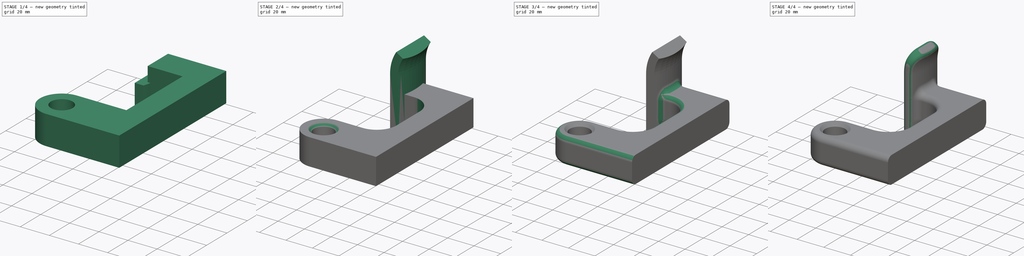
[diagram: build sequence overview — one tinted view per stage of 4, left to right]
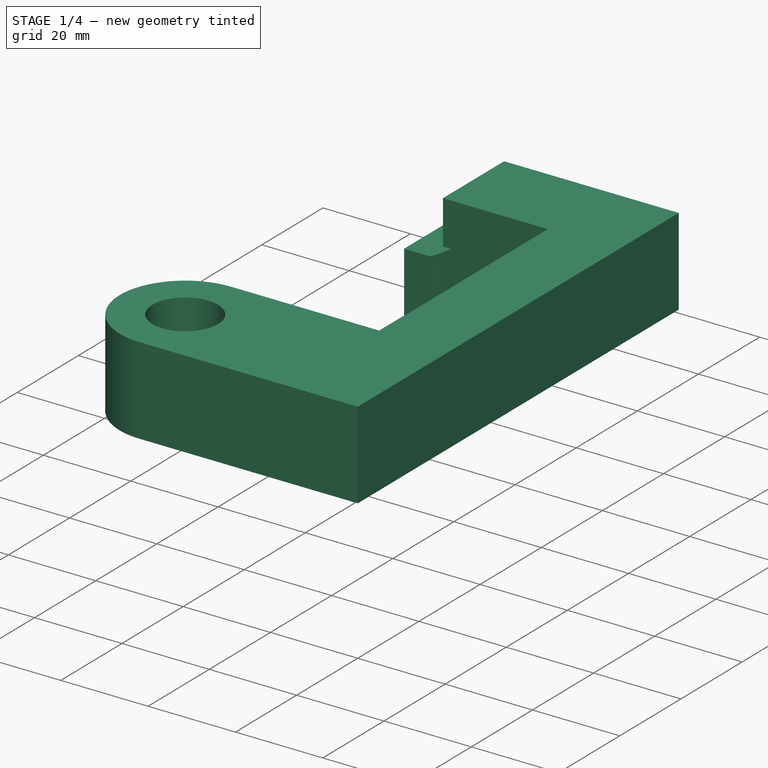
[diagram: stage 1 of 4 — iso view after this stage's code; geometry added in this stage tinted green]
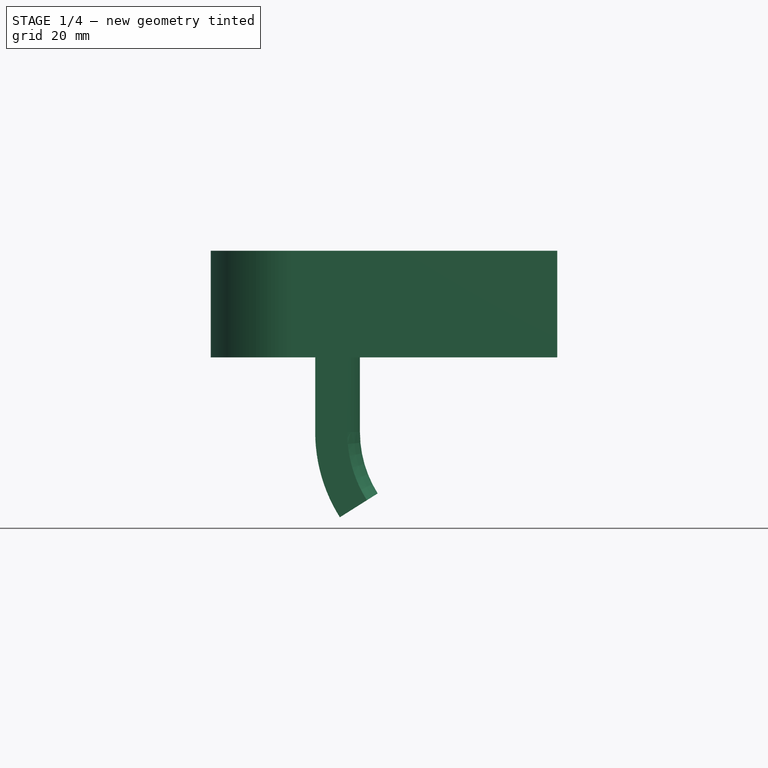
[diagram: stage 1 of 4 — front view after this stage's code; geometry added in this stage tinted green]
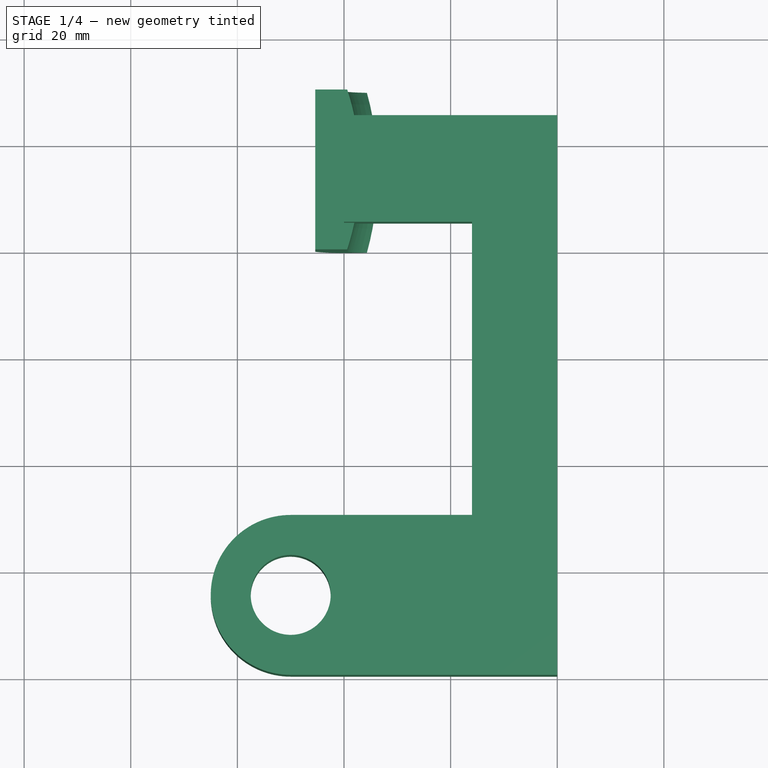
[diagram: stage 1 of 4 — top view after this stage's code; geometry added in this stage tinted green]
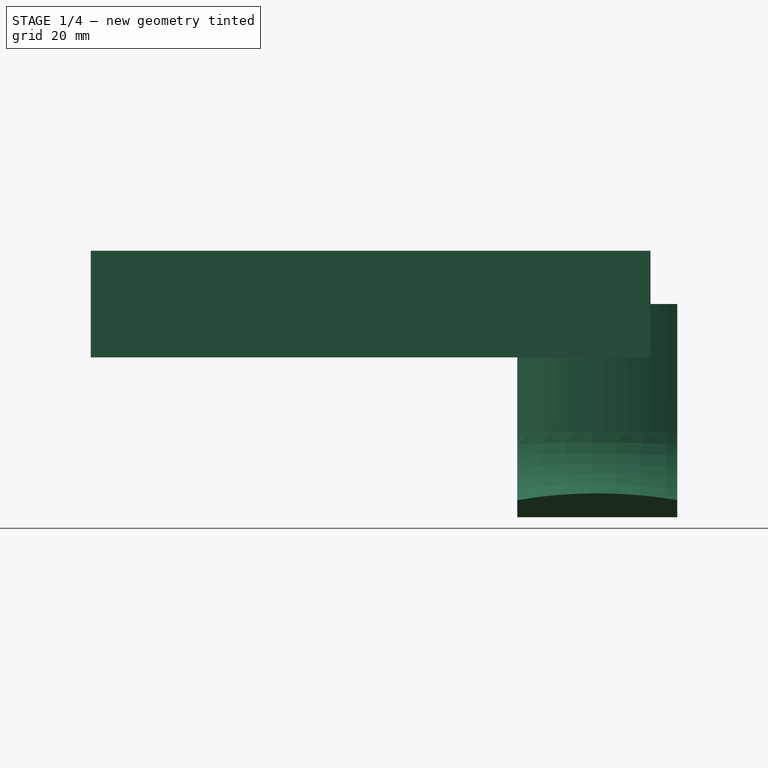
[diagram: stage 1 of 4 — right view after this stage's code; geometry added in this stage tinted green]
FCSTD DOCUMENT  (FreeCAD 0.18R4 (GitTag))
Label: door-keeper
License: All rights reserved
LicenseURL: http://en.wikipedia.org/wiki/All_rights_reserved
objects: PartDesign::Fillet×6, Sketcher::SketchObject×3, PartDesign::Pad×1, PartDesign::AdditivePipe×1, PartDesign::Mirrored×1, PartDesign::Chamfer×1, PartDesign::Body×1
note: 16 computed .brp shape members not serialized (recipe doc carries the construction recipe); baked Part::Feature solids carry a one-line shape summary decoded from their .brp

FEATURE [Sketcher::SketchObject] Sketch
  MapMode = 5
  Support = -> [XY_Plane]
  sketch-geometry (9):
    g0: LineSegment StartX=0 StartY=3.23741e-11 StartZ=0 EndX=-50 EndY=3.23741e-11 EndZ=0
    g1: LineSegment StartX=-40 StartY=105 StartZ=0 EndX=0 EndY=105 EndZ=0
    g2: LineSegment StartX=0 StartY=105 StartZ=0 EndX=0 EndY=3.23723e-11 EndZ=0
    g3: LineSegment StartX=-40 StartY=85 StartZ=0 EndX=-15.9999 EndY=85 EndZ=0
    g4: LineSegment StartX=-15.9999 StartY=85 StartZ=0 EndX=-15.9999 EndY=30 EndZ=0
    g5: LineSegment StartX=-15.9999 StartY=30 StartZ=0 EndX=-49.9999 EndY=30 EndZ=0
    g6: LineSegment StartX=-40 StartY=85 StartZ=0 EndX=-40 EndY=105 EndZ=0
    g7: ArcOfCircle CenterX=-50 CenterY=15 CenterZ=0 NormalX=0 NormalY=0 NormalZ=1 AngleXU=0 Radius=15 StartAngle=1.57079 EndAngle=4.71239
    g8: Circle CenterX=-50 CenterY=15 CenterZ=0 NormalX=0 NormalY=0 NormalZ=1 AngleXU=0 Radius=7.5
  constraints (26):
    c: Coincident(g6,g1)
    c: Coincident(g1,g2)
    c: Coincident(g2,g0)
    c: Horizontal(g0)
    c: Horizontal(g1)
    c: Vertical(g2)
    c: Coincident(g3,g4)
    c: Coincident(g4,g5)
    c: Horizontal(g3)
    c: Horizontal(g5)
    c: Vertical(g4)
    c: Coincident(g3,g6)
    c: Coincident(g7,g5)
    c: Coincident(g7,g0)
    c: Tangent(g5,g7)
    c: Tangent(g7,g0)
    c: DistanceX(g1,g1) = 40
    c: Vertical(g6)
    c: DistanceY(g2,g2) = 105
    c: DistanceY(g0,g4) = 30
    c: DistanceX(g5,g5) = 34
    c: DistanceX(g0,g0) = 50
    c: DistanceY(g6,g6) = 20
    c: Coincident(g0,g-1)
    c: Coincident(g8,g7)
    c: Diameter(g8) = 15
FEATURE [PartDesign::Pad] Pad
  Length = 20
  Length2 = 100
  Midplane = true
  Profile = -> Sketch
  Refine = true
  Type = 0
FEATURE [Sketcher::SketchObject] Sketch001
  AttachmentOffset = pos=(0,0,5) rot=(0,0,1;0rad)
  MapMode = 5
  Placement = pos=(0,110,-1.1e-15) rot=(0,0.707107,0.707107;3.14159rad)
  Support = -> [Pad]
  sketch-geometry (3):
    g0: LineSegment StartX=39.404 StartY=1.8e-15 StartZ=0 EndX=39.404 EndY=-24 EndZ=0
    g1: ArcOfCircle CenterX=15.404 CenterY=-24.0001 CenterZ=0 NormalX=0 NormalY=0 NormalZ=1 AngleXU=0 Radius=24 StartAngle=5.72067 EndAngle=6.28319
    g2: LineSegment [constr] StartX=35.7059 StartY=-36.7997 StartZ=0 EndX=15.404 EndY=-24.0001 EndZ=0
  constraints (10):
    c: Vertical(g0)
    c: DistanceY(g0,g0) = 24
    c: DistanceY(g0,g-1) = 24
    c: Distance(g0,g-2) = 39.404
    c: Coincident(g1,g0)
    c: Radius(g1) = 24
    c: Coincident(g2,g1)
    c: Coincident(g2,g1)
    c: Angle(g2,g-1) = 0.56252
    c: Tangent(g1,g0)
FEATURE [Sketcher::SketchObject] Sketch002
  ExternalGeometry = -> [Sketch001]
  MapMode = 5
  Support = -> [XY_Plane]
  sketch-geometry (4):
    g0: ArcOfCircle CenterX=-85.0001 CenterY=95 CenterZ=0 NormalX=0 NormalY=0 NormalZ=1 AngleXU=0 Radius=48 StartAngle=5.96536 EndAngle=6.60101
    g1: LineSegment StartX=-39.404 StartY=110 StartZ=0 EndX=-45.404 EndY=110 EndZ=0
    g2: LineSegment StartX=-39.404 StartY=80 StartZ=0 EndX=-45.404 EndY=80 EndZ=0
    g3: LineSegment StartX=-45.404 StartY=80 StartZ=0 EndX=-45.404 EndY=110 EndZ=0
  constraints (12):
    c: Coincident(g0,g-3)
    c: Radius(g0) = 48
    c: DistanceY(g0,g0) = 30
    c: DistanceY(g0,g0) = 15
    c: Coincident(g1,g0)
    c: Horizontal(g1)
    c: Coincident(g2,g0)
    c: Horizontal(g2)
    c: Coincident(g3,g2)
    c: Vertical(g3)
    c: Coincident(g1,g3)
    c: DistanceX(g1,g1) = 6
FEATURE [PartDesign::AdditivePipe] AdditivePipe
  AuxilleryCurvelinear = true
  AuxillerySpineTangent = false
  BaseFeature = -> Pad
  Binormal = (0,0,0)
  Mode = 0
  Profile = -> Sketch002
  Refine = true
  Spine = -> Sketch001 [Edge1,Edge2]
  SpineTangent = false
  Transformation = 0
  Transition = 0
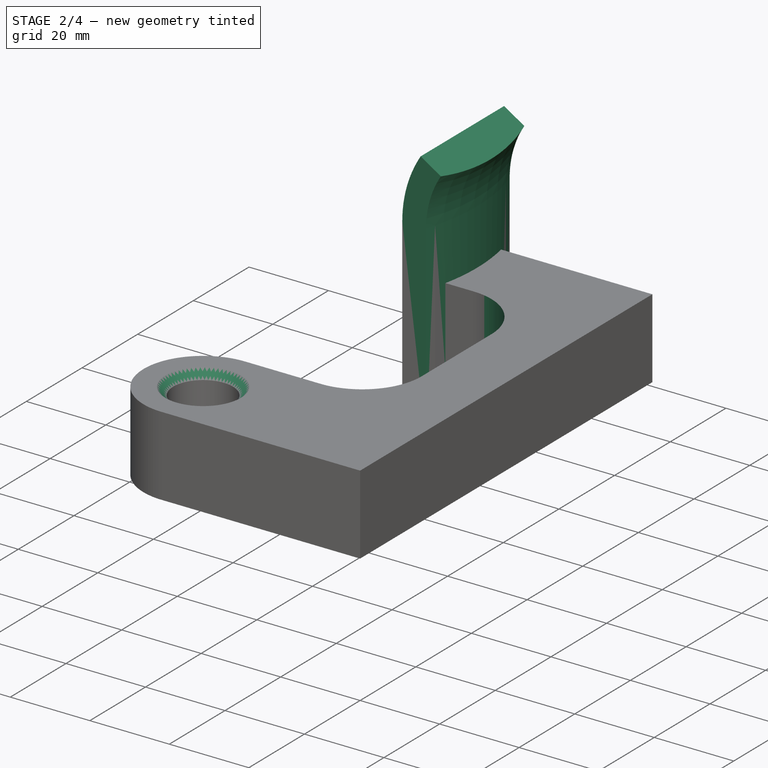
[diagram: stage 2 of 4 — iso view after this stage's code; geometry added in this stage tinted green]
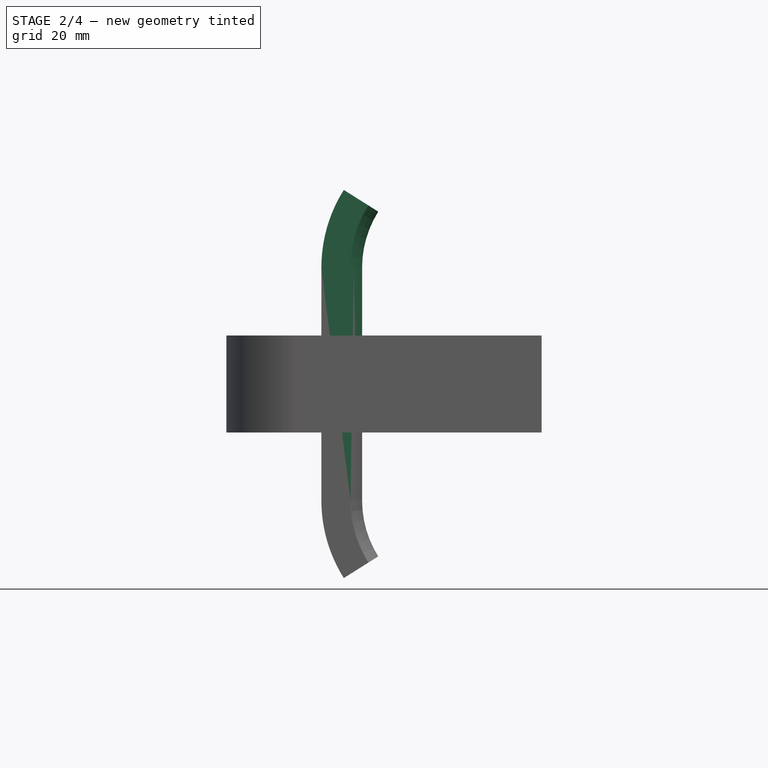
[diagram: stage 2 of 4 — front view after this stage's code; geometry added in this stage tinted green]
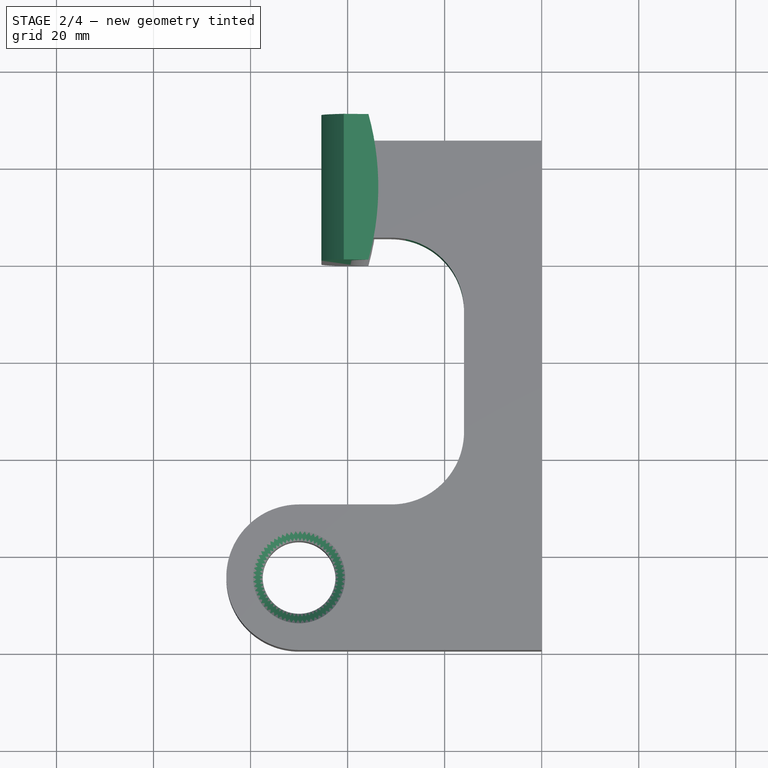
[diagram: stage 2 of 4 — top view after this stage's code; geometry added in this stage tinted green]
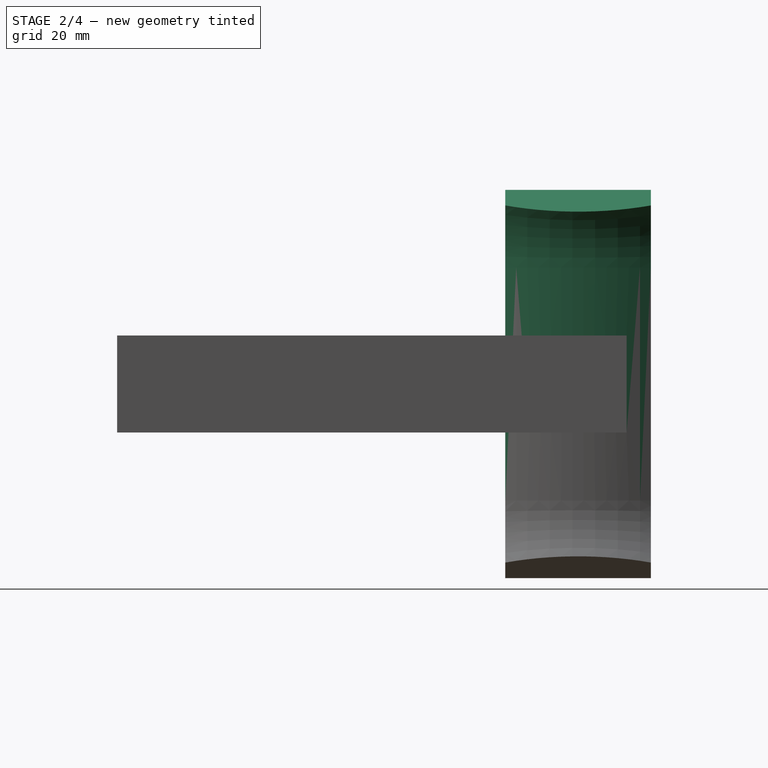
[diagram: stage 2 of 4 — right view after this stage's code; geometry added in this stage tinted green]
FEATURE [PartDesign::Mirrored] Mirrored
  BaseFeature = -> AdditivePipe
  MirrorPlane = -> XY_Plane
  Originals = -> [AdditivePipe]
  Refine = true
FEATURE [PartDesign::Chamfer] Chamfer
  Base = -> Mirrored [Edge46,Edge38]
  BaseFeature = -> Mirrored
  Size = 2
FEATURE [PartDesign::Fillet] Fillet
  Base = -> Chamfer [Edge15,Edge13]
  BaseFeature = -> Chamfer
  Radius = 15
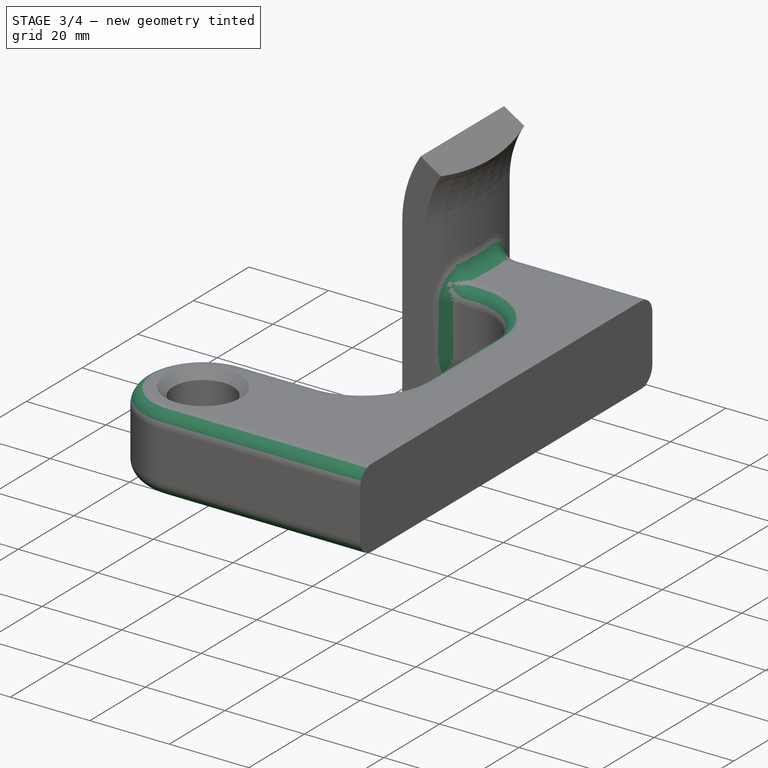
[diagram: stage 3 of 4 — iso view after this stage's code; geometry added in this stage tinted green]
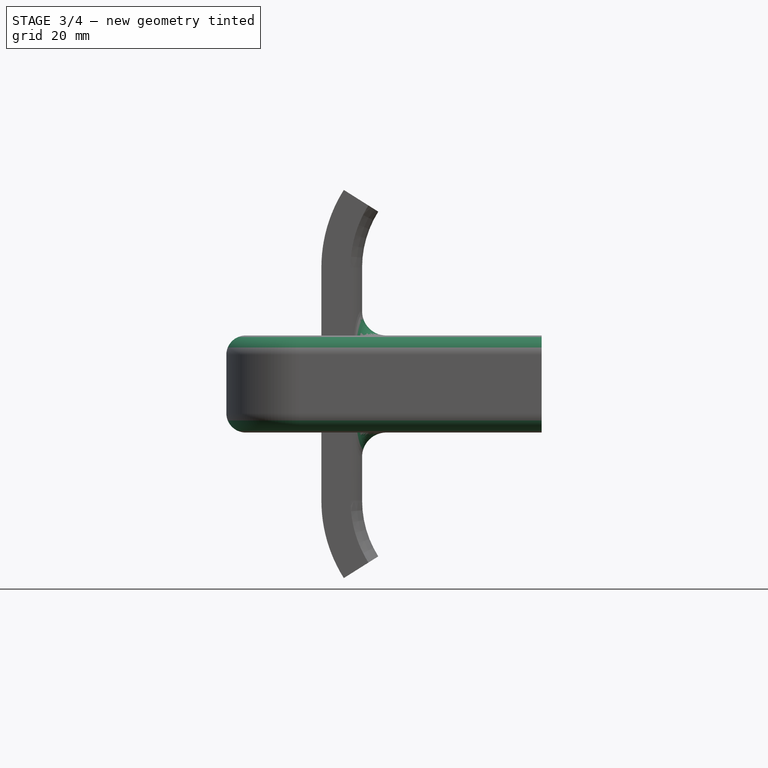
[diagram: stage 3 of 4 — front view after this stage's code; geometry added in this stage tinted green]
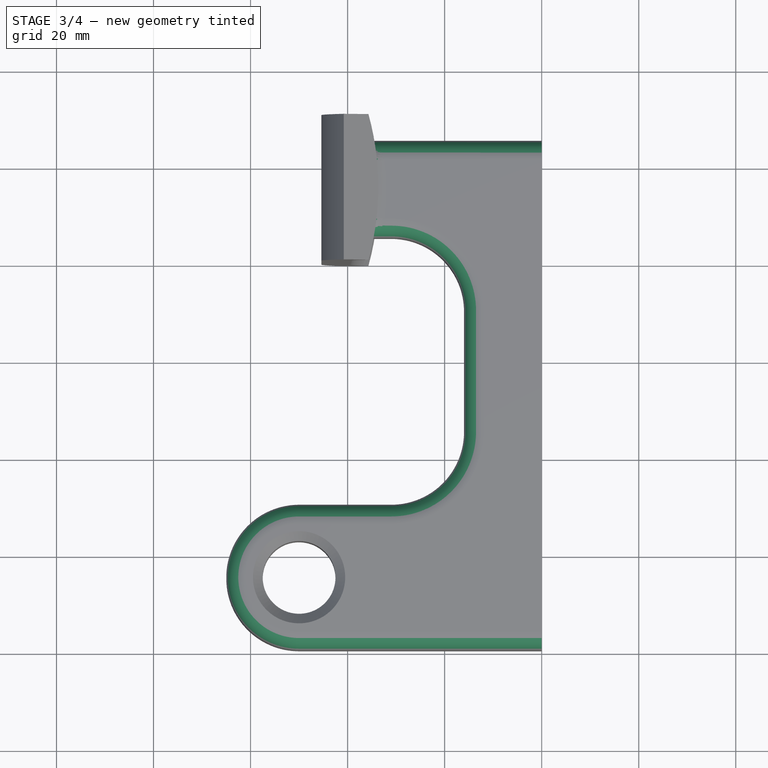
[diagram: stage 3 of 4 — top view after this stage's code; geometry added in this stage tinted green]
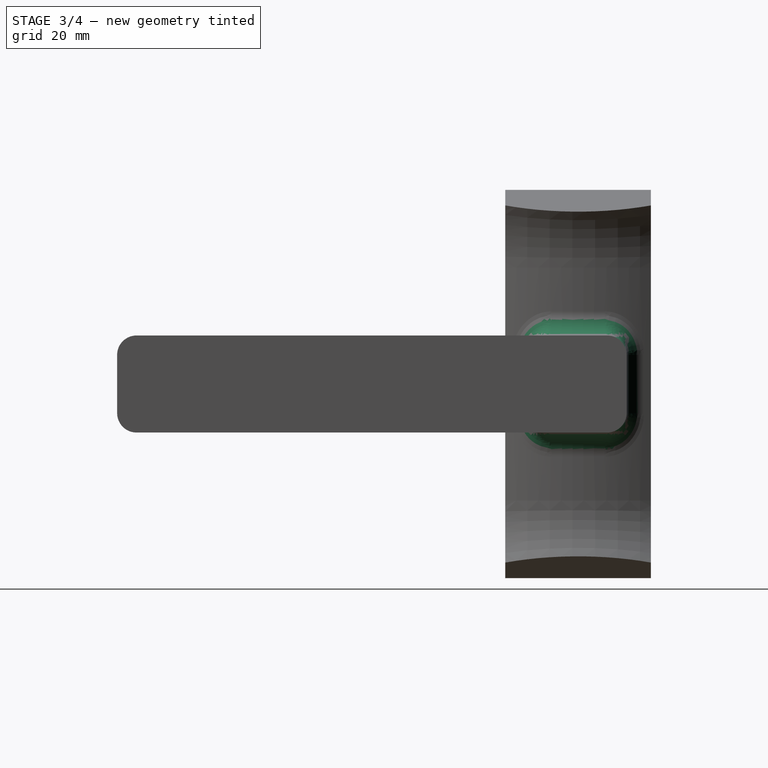
[diagram: stage 3 of 4 — right view after this stage's code; geometry added in this stage tinted green]
FEATURE [PartDesign::Fillet] Fillet001
  Base = -> Fillet [Edge9,Edge10,Edge8,Edge6,Edge4,Edge2,Edge1,Edge14,Edge16,Edge24,Edge28,Edge32,Edge35,Edge34]
  BaseFeature = -> Fillet
  Radius = 4
FEATURE [PartDesign::Fillet] Fillet002
  Base = -> Fillet001 [Edge24,Edge3]
  BaseFeature = -> Fillet001
  Radius = 4
FEATURE [PartDesign::Fillet] Fillet003
  Base = -> Fillet002 [Edge14,Edge16,Edge18,Edge12,Edge17,Edge15,Edge13,Edge1]
  BaseFeature = -> Fillet002
  Radius = 5
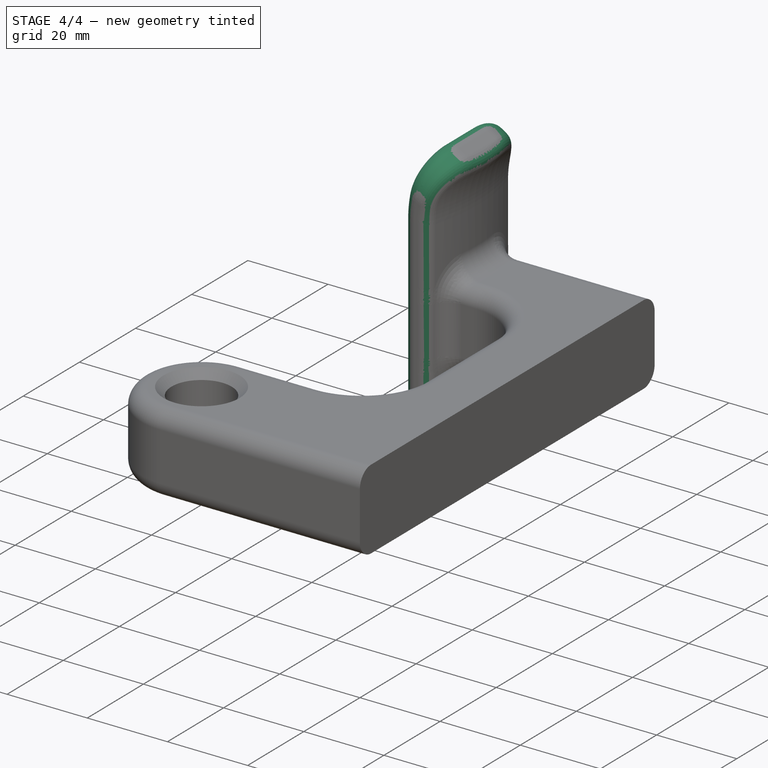
[diagram: stage 4 of 4 — iso view after this stage's code; geometry added in this stage tinted green]
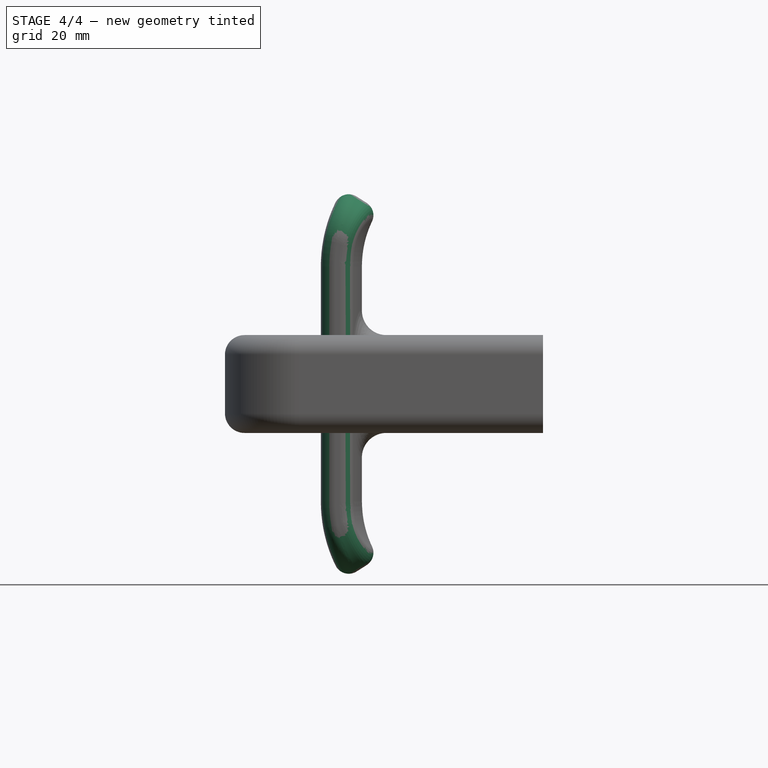
[diagram: stage 4 of 4 — front view after this stage's code; geometry added in this stage tinted green]
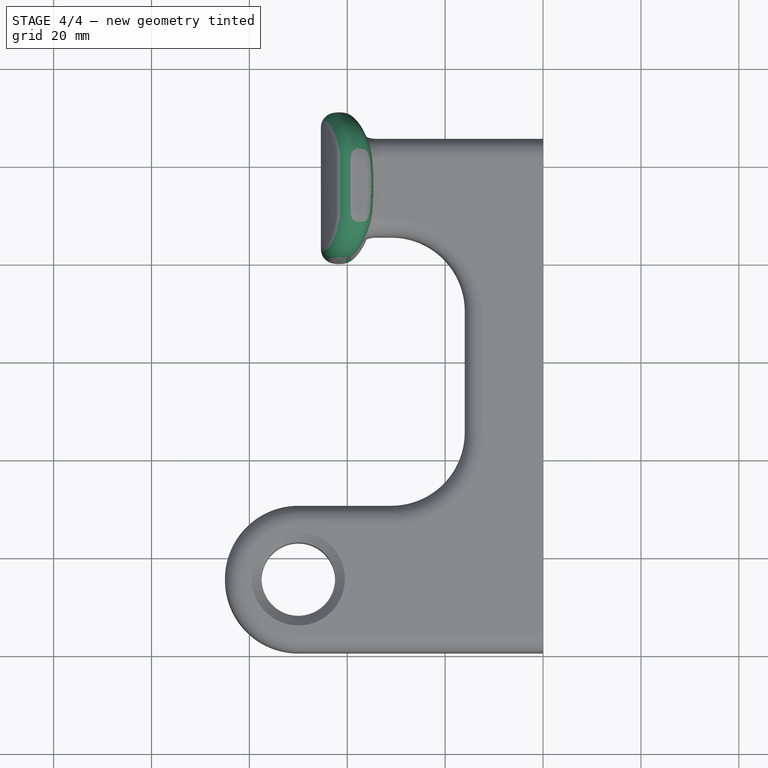
[diagram: stage 4 of 4 — top view after this stage's code; geometry added in this stage tinted green]
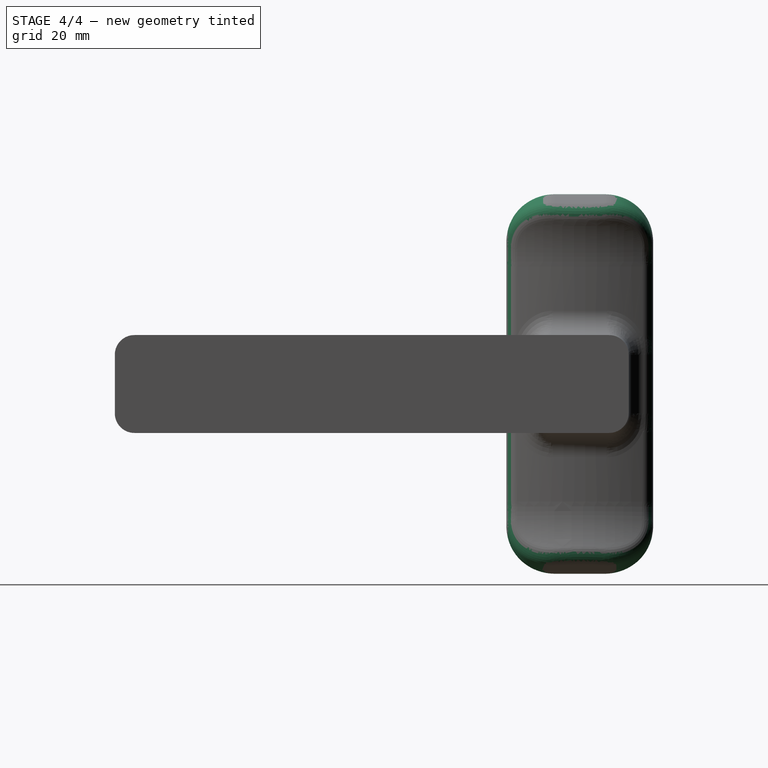
[diagram: stage 4 of 4 — right view after this stage's code; geometry added in this stage tinted green]
FEATURE [PartDesign::Fillet] Fillet004
  Base = -> Fillet003 [Edge89,Edge97,Edge92,Edge101]
  BaseFeature = -> Fillet003
  Radius = 10
FEATURE [PartDesign::Fillet] Fillet005
  Base = -> Fillet004 [Edge38,Edge40,Edge36,Edge8,Edge6,Edge25,Edge24,Edge23,Edge22,Edge39,Edge34,Edge17,Edge9,Edge20,Edge21,Edge10,Edge12,Edge19,Edge13,Edge14,Edge4,Edge3,Edge1,Edge5]
  BaseFeature = -> Fillet004
  Radius = 3
FEATURE [PartDesign::Body] Body
  Group = -> [Sketch,Pad,Sketch001,Sketch002,AdditivePipe,Mirrored,Chamfer,Fillet,Fillet001,Fillet002,Fillet003,Fillet004,Fillet005]
  Origin = -> Origin
  Tip = -> Fillet005
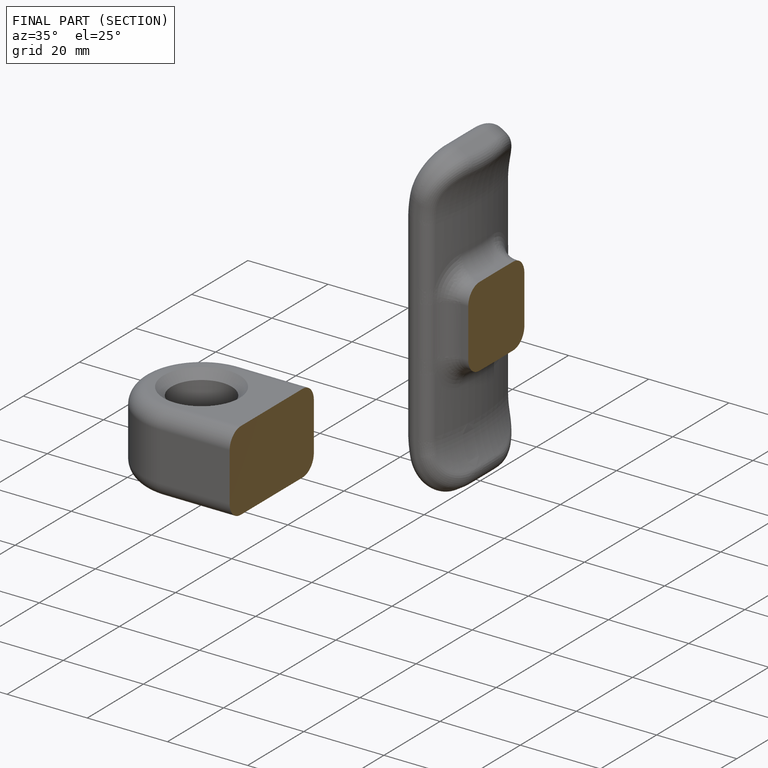
[diagram: finished part — half-section view (interior)]
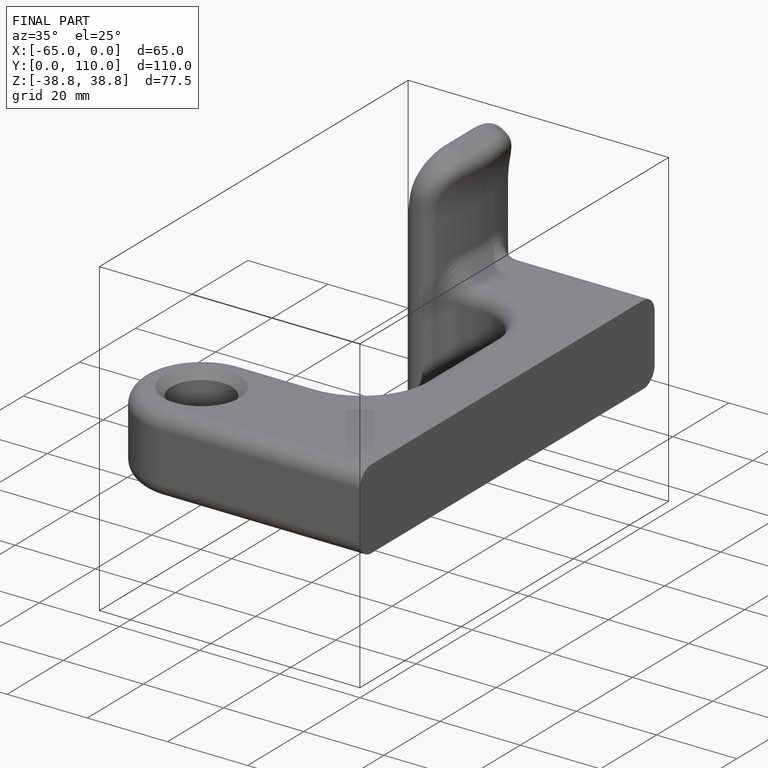
[diagram: finished part — iso view with bounding-box wireframe]
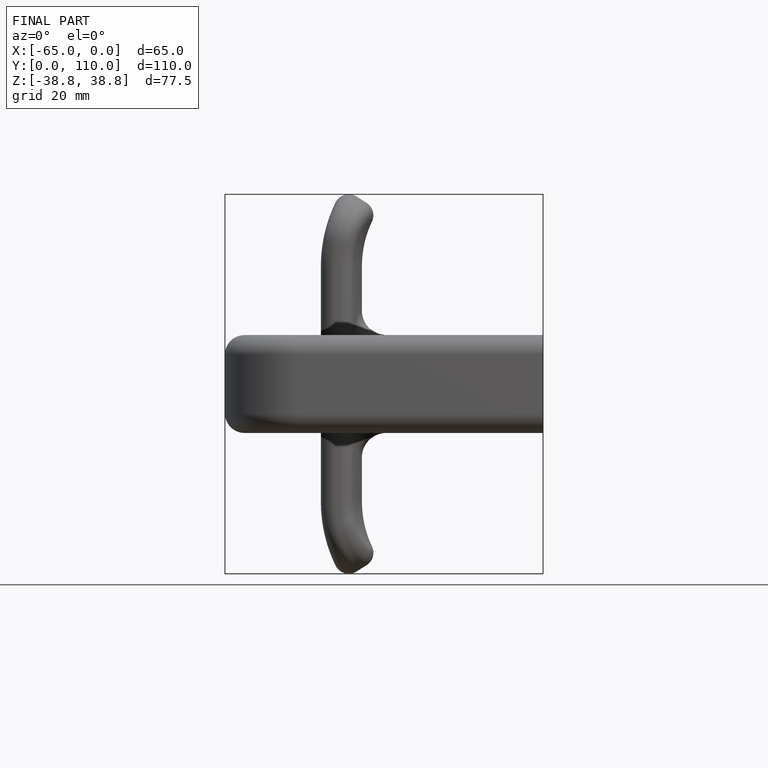
[diagram: finished part — front view with bounding-box wireframe]
